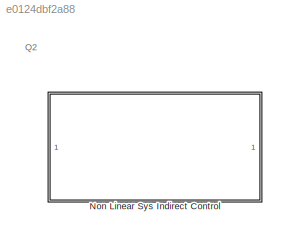
MODEL slx_e0124dbf2a88
KIND model
CONFIG AbsTol = auto
CONFIG EnableMultiTasking = off
CONFIG FixedStep = auto
CONFIG MaxStep = auto
CONFIG MinStep = auto
CONFIG RelTol = 1e-3
CONFIG SampleTimeConstraint = Unconstrained
CONFIG SolverName = VariableStepAuto
CONFIG StartTime = 0.0
CONFIG StopTime = 50
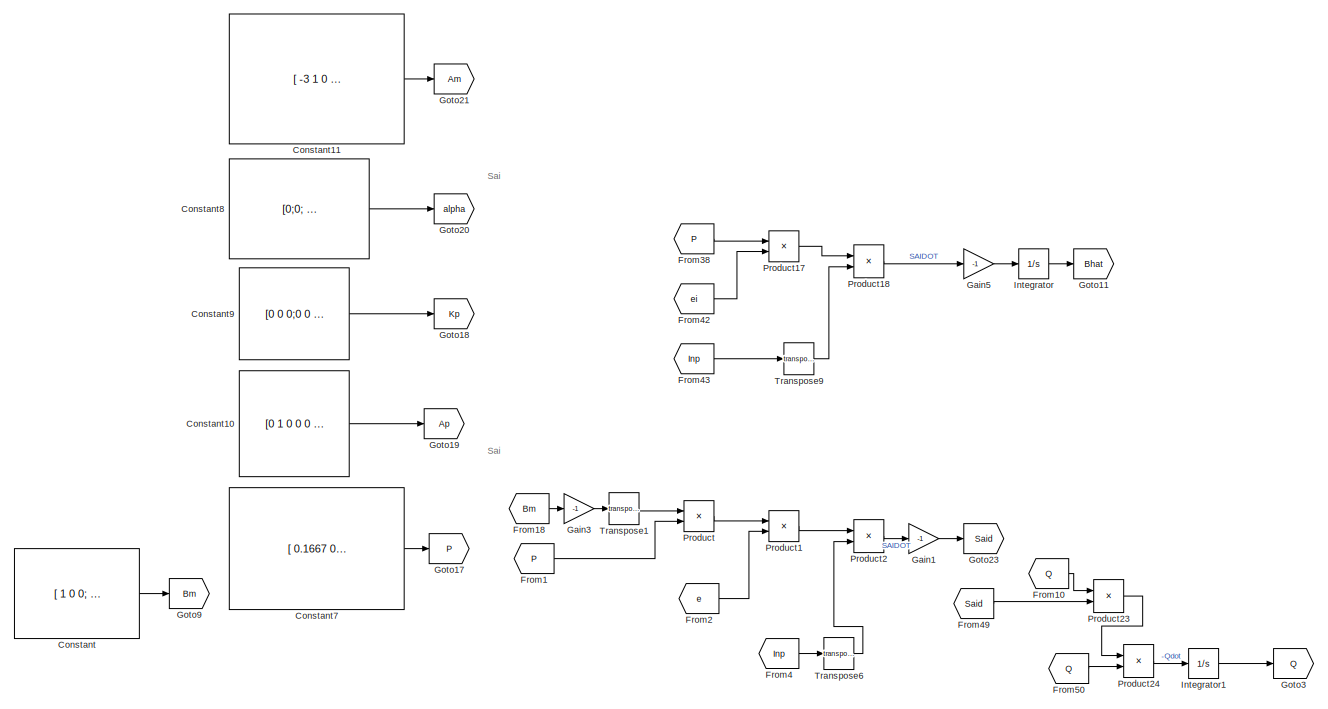
[diagram: Non Linear Sys Indirect Control - part 1/4, top left region]
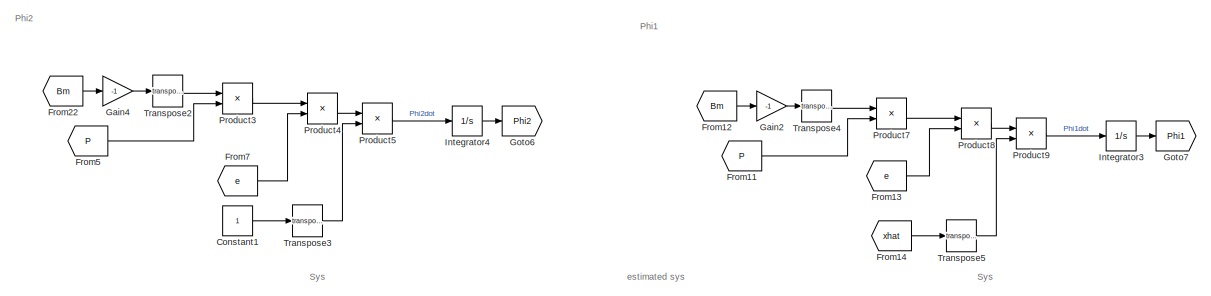
[diagram: Non Linear Sys Indirect Control - part 2/4, middle right region]
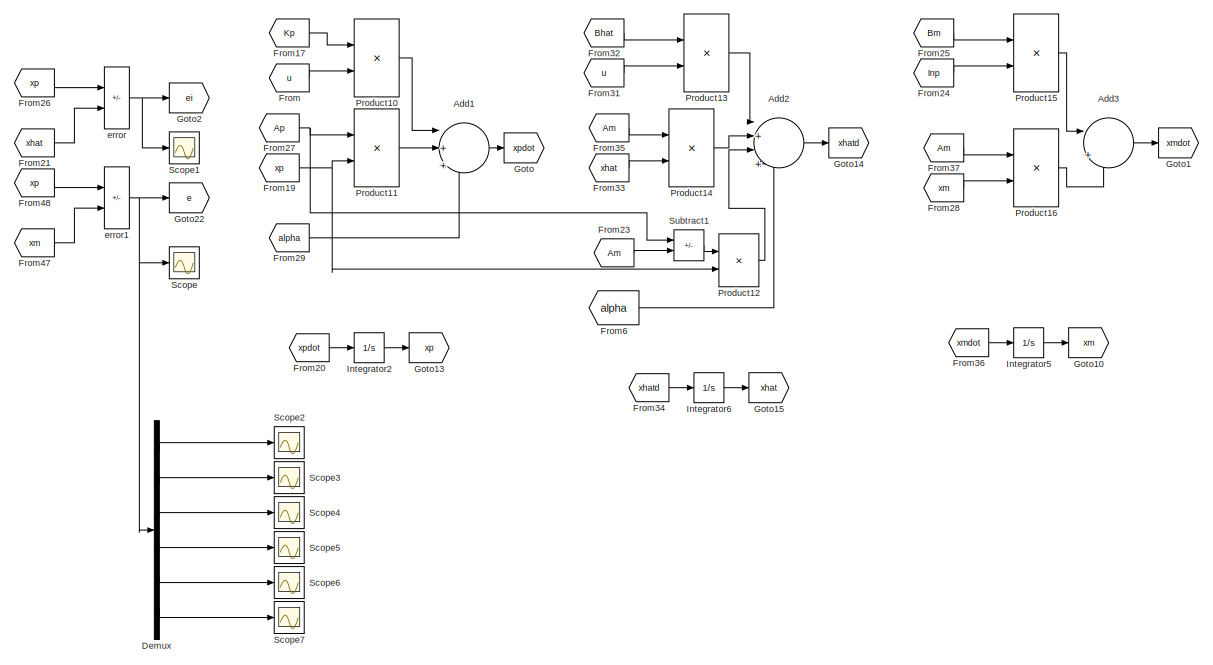
[diagram: Non Linear Sys Indirect Control - part 3/4, bottom right region]
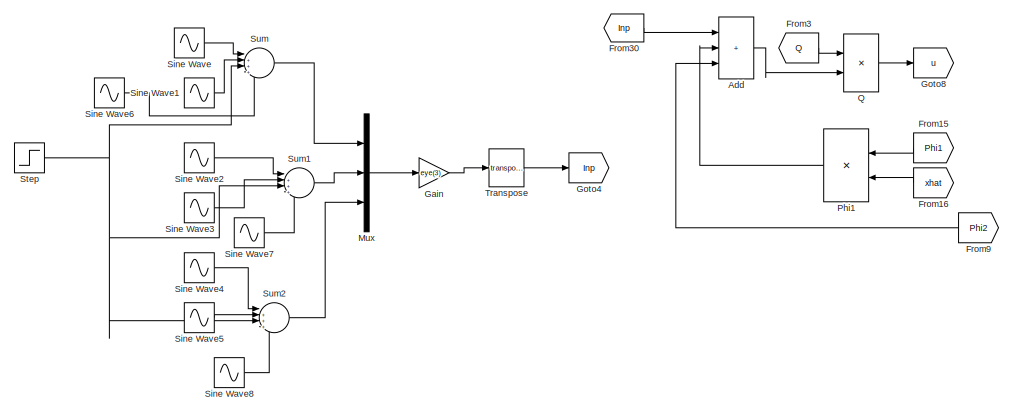
[diagram: Non Linear Sys Indirect Control - part 4/4, bottom center region]
BLOCK [SubSystem] Non Linear Sys Indirect Control
BLOCK [Sum] Non Linear Sys Indirect Control/Add
  IconShape = rectangular
  Inputs = +++
BLOCK [Sum] Non Linear Sys Indirect Control/Add1
  Inputs = |++|+
BLOCK [Sum] Non Linear Sys Indirect Control/Add2
  Inputs = |+|+|+|+
BLOCK [Sum] Non Linear Sys Indirect Control/Add3
  Inputs = |+|+
BLOCK [Constant] Non Linear Sys Indirect Control/Constant
  Value = [ 1 0 0;\n           0 1 0;\n           0 0 1;\n           1 0 0;\n           0 1 0;\n           0 0 1 ];
BLOCK [Constant] Non Linear Sys Indirect Control/Constant1
BLOCK [Constant] Non Linear Sys Indirect Control/Constant10
  Value = [0 1 0 0 0 0;      0 0 0 0 0 0;\n      0 0 0 1 0 0;      0 0 0 0 0 0;\n      0 0 0 0 0 1;      0 0 0 0 0 0]
BLOCK [Constant] Non Linear Sys Indirect Control/Constant11
  Value = [ -3  1  0  0  0  0;\n            0 -2  1  0  0  0;\n            0  0 -1  1  0  0;\n            0  0  0 -1  1  0;\n            0  0  0  0 -1  1;\n            0  0  0  0  0 -1 ]
BLOCK [Constant] Non Linear Sys Indirect Control/Constant7
  Value = [ 0.1667  0.0333  0.0083  0.0021  0.0005  0.0001;\n          0.0333  0.2667  0.0917  0.0312  0.0106  0.0036;\n          0.0083  0.0917  0.5917  0.3115  0.1610  0.0823;\n          0.0021  0.0312  0.3115  0.8115  0.4862  0.2843;\n          0.0005  0.0106  0.1610  0.4862  0.9862  0.6353;\n          0.0001  0.0036  0.0823  0.2843  0.6353  1.1353 ];
BLOCK [Constant] Non Linear Sys Indirect Control/Constant8
  Value = [0;0;      0 ;\n      0 ;  -9.806 ;      0 ];
BLOCK [Constant] Non Linear Sys Indirect Control/Constant9
  Value = [0 0 0;0 0 0;0 0 0 ;1/2.5 0 0  ; 0 1/2.5  0;0 0 1/0.03];
BLOCK [Demux] Non Linear Sys Indirect Control/Demux
  Outputs = 6
BLOCK [From] Non Linear Sys Indirect Control/From
  GotoTag = u
BLOCK [From] Non Linear Sys Indirect Control/From1
  GotoTag = P
BLOCK [From] Non Linear Sys Indirect Control/From10
  GotoTag = Q
BLOCK [From] Non Linear Sys Indirect Control/From11
  GotoTag = P
BLOCK [From] Non Linear Sys Indirect Control/From12
  GotoTag = Bm
BLOCK [From] Non Linear Sys Indirect Control/From13
  GotoTag = e
BLOCK [From] Non Linear Sys Indirect Control/From14
  GotoTag = xhat
BLOCK [From] Non Linear Sys Indirect Control/From15
  GotoTag = Phi1
  NameLocation = top
BLOCK [From] Non Linear Sys Indirect Control/From16
  GotoTag = xhat
  NameLocation = top
BLOCK [From] Non Linear Sys Indirect Control/From17
  GotoTag = Kp
BLOCK [From] Non Linear Sys Indirect Control/From18
  GotoTag = Bm
BLOCK [From] Non Linear Sys Indirect Control/From19
  GotoTag = xp
BLOCK [From] Non Linear Sys Indirect Control/From2
  GotoTag = e
BLOCK [From] Non Linear Sys Indirect Control/From20
  GotoTag = xpdot
BLOCK [From] Non Linear Sys Indirect Control/From21
  GotoTag = xhat
BLOCK [From] Non Linear Sys Indirect Control/From22
  GotoTag = Bm
BLOCK [From] Non Linear Sys Indirect Control/From23
  GotoTag = Am
BLOCK [From] Non Linear Sys Indirect Control/From24
  GotoTag = Inp
BLOCK [From] Non Linear Sys Indirect Control/From25
  GotoTag = Bm
BLOCK [From] Non Linear Sys Indirect Control/From26
  GotoTag = xp
BLOCK [From] Non Linear Sys Indirect Control/From27
  GotoTag = Ap
BLOCK [From] Non Linear Sys Indirect Control/From28
  GotoTag = xm
BLOCK [From] Non Linear Sys Indirect Control/From29
  GotoTag = alpha
BLOCK [From] Non Linear Sys Indirect Control/From3
  GotoTag = Q
BLOCK [From] Non Linear Sys Indirect Control/From30
  GotoTag = Inp
BLOCK [From] Non Linear Sys Indirect Control/From31
  GotoTag = u
BLOCK [From] Non Linear Sys Indirect Control/From32
  GotoTag = Bhat
BLOCK [From] Non Linear Sys Indirect Control/From33
  GotoTag = xhat
BLOCK [From] Non Linear Sys Indirect Control/From34
  GotoTag = xhatd
BLOCK [From] Non Linear Sys Indirect Control/From35
  GotoTag = Am
BLOCK [From] Non Linear Sys Indirect Control/From36
  GotoTag = xmdot
BLOCK [From] Non Linear Sys Indirect Control/From37
  GotoTag = Am
BLOCK [From] Non Linear Sys Indirect Control/From38
  GotoTag = P
BLOCK [From] Non Linear Sys Indirect Control/From4
  GotoTag = Inp
BLOCK [From] Non Linear Sys Indirect Control/From42
  GotoTag = ei
BLOCK [From] Non Linear Sys Indirect Control/From43
  GotoTag = Inp
BLOCK [From] Non Linear Sys Indirect Control/From47
  GotoTag = xm
BLOCK [From] Non Linear Sys Indirect Control/From48
  GotoTag = xp
BLOCK [From] Non Linear Sys Indirect Control/From49
  GotoTag = Said
BLOCK [From] Non Linear Sys Indirect Control/From5
  GotoTag = P
BLOCK [From] Non Linear Sys Indirect Control/From50
  GotoTag = Q
BLOCK [From] Non Linear Sys Indirect Control/From6
  GotoTag = alpha
BLOCK [From] Non Linear Sys Indirect Control/From7
  GotoTag = e
BLOCK [From] Non Linear Sys Indirect Control/From9
  GotoTag = Phi2
  NameLocation = top
BLOCK [Gain] Non Linear Sys Indirect Control/Gain
  Gain = eye(3)
  Multiplication = Matrix(u*K)
BLOCK [Gain] Non Linear Sys Indirect Control/Gain1
  Gain = -1
BLOCK [Gain] Non Linear Sys Indirect Control/Gain2
  Gain = -1
BLOCK [Gain] Non Linear Sys Indirect Control/Gain3
  Gain = -1
BLOCK [Gain] Non Linear Sys Indirect Control/Gain4
  Gain = -1
BLOCK [Gain] Non Linear Sys Indirect Control/Gain5
  Gain = -1
BLOCK [Goto] Non Linear Sys Indirect Control/Goto
  GotoTag = xpdot
BLOCK [Goto] Non Linear Sys Indirect Control/Goto1
  GotoTag = xmdot
BLOCK [Goto] Non Linear Sys Indirect Control/Goto10
  GotoTag = xm
BLOCK [Goto] Non Linear Sys Indirect Control/Goto11
  GotoTag = Bhat
BLOCK [Goto] Non Linear Sys Indirect Control/Goto13
  GotoTag = xp
BLOCK [Goto] Non Linear Sys Indirect Control/Goto14
  GotoTag = xhatd
BLOCK [Goto] Non Linear Sys Indirect Control/Goto15
  GotoTag = xhat
BLOCK [Goto] Non Linear Sys Indirect Control/Goto17
  GotoTag = P
BLOCK [Goto] Non Linear Sys Indirect Control/Goto18
  GotoTag = Kp
BLOCK [Goto] Non Linear Sys Indirect Control/Goto19
  GotoTag = Ap
BLOCK [Goto] Non Linear Sys Indirect Control/Goto2
  GotoTag = ei
BLOCK [Goto] Non Linear Sys Indirect Control/Goto20
  GotoTag = alpha
BLOCK [Goto] Non Linear Sys Indirect Control/Goto21
  GotoTag = Am
BLOCK [Goto] Non Linear Sys Indirect Control/Goto22
  GotoTag = e
BLOCK [Goto] Non Linear Sys Indirect Control/Goto23
  GotoTag = Said
BLOCK [Goto] Non Linear Sys Indirect Control/Goto3
  GotoTag = Q
BLOCK [Goto] Non Linear Sys Indirect Control/Goto4
  GotoTag = Inp
BLOCK [Goto] Non Linear Sys Indirect Control/Goto6
  GotoTag = Phi2
BLOCK [Goto] Non Linear Sys Indirect Control/Goto7
  GotoTag = Phi1
BLOCK [Goto] Non Linear Sys Indirect Control/Goto8
  GotoTag = u
BLOCK [Goto] Non Linear Sys Indirect Control/Goto9
  GotoTag = Bm
BLOCK [Integrator] Non Linear Sys Indirect Control/Integrator
BLOCK [Integrator] Non Linear Sys Indirect Control/Integrator1
  IgnoreLimit = on
  InitialCondition = [0 0 0; 0 0 0; 0 0 0]
BLOCK [Integrator] Non Linear Sys Indirect Control/Integrator2
  InitialCondition = [0 ;0; 0;0;0;0]
BLOCK [Integrator] Non Linear Sys Indirect Control/Integrator3
BLOCK [Integrator] Non Linear Sys Indirect Control/Integrator4
BLOCK [Integrator] Non Linear Sys Indirect Control/Integrator5
BLOCK [Integrator] Non Linear Sys Indirect Control/Integrator6
  InitialCondition = [0; 0; 0;0;0;0]
BLOCK [Mux] Non Linear Sys Indirect Control/Mux
  DisplayOption = bar
  Inputs = 3
BLOCK [Product] Non Linear Sys Indirect Control/Phi1
  Multiplication = Matrix(*)
  NameLocation = top
BLOCK [Product] Non Linear Sys Indirect Control/Product
  Multiplication = Matrix(*)
BLOCK [Product] Non Linear Sys Indirect Control/Product1
  Multiplication = Matrix(*)
BLOCK [Product] Non Linear Sys Indirect Control/Product10
  Multiplication = Matrix(*)
BLOCK [Product] Non Linear Sys Indirect Control/Product11
  Multiplication = Matrix(*)
BLOCK [Product] Non Linear Sys Indirect Control/Product12
  Multiplication = Matrix(*)
BLOCK [Product] Non Linear Sys Indirect Control/Product13
  Multiplication = Matrix(*)
BLOCK [Product] Non Linear Sys Indirect Control/Product14
  Multiplication = Matrix(*)
BLOCK [Product] Non Linear Sys Indirect Control/Product15
  Multiplication = Matrix(*)
BLOCK [Product] Non Linear Sys Indirect Control/Product16
  Multiplication = Matrix(*)
BLOCK [Product] Non Linear Sys Indirect Control/Product17
  Multiplication = Matrix(*)
BLOCK [Product] Non Linear Sys Indirect Control/Product18
  Multiplication = Matrix(*)
BLOCK [Product] Non Linear Sys Indirect Control/Product2
  Multiplication = Matrix(*)
BLOCK [Product] Non Linear Sys Indirect Control/Product23
  Multiplication = Matrix(*)
BLOCK [Product] Non Linear Sys Indirect Control/Product24
  Multiplication = Matrix(*)
BLOCK [Product] Non Linear Sys Indirect Control/Product3
  Multiplication = Matrix(*)
BLOCK [Product] Non Linear Sys Indirect Control/Product4
  Multiplication = Matrix(*)
BLOCK [Product] Non Linear Sys Indirect Control/Product5
  Multiplication = Matrix(*)
BLOCK [Product] Non Linear Sys Indirect Control/Product7
  Multiplication = Matrix(*)
BLOCK [Product] Non Linear Sys Indirect Control/Product8
  Multiplication = Matrix(*)
BLOCK [Product] Non Linear Sys Indirect Control/Product9
  Multiplication = Matrix(*)
BLOCK [Product] Non Linear Sys Indirect Control/Q
  Multiplication = Matrix(*)
BLOCK [Scope] Non Linear Sys Indirect Control/Scope
  Floating = off
  NumInputPorts = 1
  ScopeSpecificationString = Simulink.scopes.TimeScopeBlockCfg('CurrentConfiguration', extmgr.ConfigurationSet(extmgr.Configuration('Core','General UI',true),extmgr.Configuration('Core','Source UI',true),extmgr.Configuration('Sources','WiredSimulink',true,'DataLoggingVariableName','ScopeData1'),extmgr.Configuration('Visuals','Time Domain',true,'SerializedDisplays',{struct('MinYLimReal','-556.65487','MaxYLimReal','61.85054','Y...<+1588ch>
BLOCK [Scope] Non Linear Sys Indirect Control/Scope1
  Floating = off
  NumInputPorts = 1
  ScopeSpecificationString = Simulink.scopes.TimeScopeBlockCfg('CurrentConfiguration', extmgr.ConfigurationSet(extmgr.Configuration('Core','General UI',true),extmgr.Configuration('Core','Source UI',true),extmgr.Configuration('Sources','WiredSimulink',true),extmgr.Configuration('Visuals','Time Domain',true,'SerializedDisplays',{struct('MinYLimReal','-1.00000','MaxYLimReal','1.00000','YLabelReal','','MinYLimMag','0.00000','MaxY...<+1377ch>
BLOCK [Scope] Non Linear Sys Indirect Control/Scope2
  Floating = off
  NumInputPorts = 1
  ScopeSpecificationString = Simulink.scopes.TimeScopeBlockCfg('CurrentConfiguration', extmgr.ConfigurationSet(extmgr.Configuration('Core','General UI',true),extmgr.Configuration('Core','Source UI',true),extmgr.Configuration('Sources','WiredSimulink',true,'DataLoggingVariableName','ScopeData2'),extmgr.Configuration('Visuals','Time Domain',true,'SerializedDisplays',{struct('MinYLimReal','-5.29694','MaxYLimReal','0.58855','YLab...<+1366ch>
BLOCK [Scope] Non Linear Sys Indirect Control/Scope3
  Floating = off
  NumInputPorts = 1
  ScopeSpecificationString = Simulink.scopes.TimeScopeBlockCfg('CurrentConfiguration', extmgr.ConfigurationSet(extmgr.Configuration('Core','General UI',true),extmgr.Configuration('Core','Source UI',true),extmgr.Configuration('Sources','WiredSimulink',true,'DataLoggingVariableName','ScopeData3'),extmgr.Configuration('Visuals','Time Domain',true,'SerializedDisplays',{struct('MinYLimReal','-10.6352','MaxYLimReal','1.18169','YLab...<+1366ch>
BLOCK [Scope] Non Linear Sys Indirect Control/Scope4
  Floating = off
  NumInputPorts = 1
  ScopeSpecificationString = Simulink.scopes.TimeScopeBlockCfg('CurrentConfiguration', extmgr.ConfigurationSet(extmgr.Configuration('Core','General UI',true),extmgr.Configuration('Core','Source UI',true),extmgr.Configuration('Sources','WiredSimulink',true,'DataLoggingVariableName','ScopeData4'),extmgr.Configuration('Visuals','Time Domain',true,'SerializedDisplays',{struct('MinYLimReal','-17.09317','MaxYLimReal','1.89924','YLa...<+1370ch>
BLOCK [Scope] Non Linear Sys Indirect Control/Scope5
  Floating = off
  NumInputPorts = 1
  ScopeSpecificationString = Simulink.scopes.TimeScopeBlockCfg('CurrentConfiguration', extmgr.ConfigurationSet(extmgr.Configuration('Core','General UI',true),extmgr.Configuration('Core','Source UI',true),extmgr.Configuration('Sources','WiredSimulink',true,'DataLoggingVariableName','ScopeData5'),extmgr.Configuration('Visuals','Time Domain',true,'SerializedDisplays',{struct('MinYLimReal','-13.52507','MaxYLimReal','1.50279','YLa...<+1370ch>
BLOCK [Scope] Non Linear Sys Indirect Control/Scope6
  Floating = off
  NumInputPorts = 1
  ScopeSpecificationString = Simulink.scopes.TimeScopeBlockCfg('CurrentConfiguration', extmgr.ConfigurationSet(extmgr.Configuration('Core','General UI',true),extmgr.Configuration('Core','Source UI',true),extmgr.Configuration('Sources','WiredSimulink',true,'DataLoggingVariableName','ScopeData6'),extmgr.Configuration('Visuals','Time Domain',true,'SerializedDisplays',{struct('MinYLimReal','-556.65487','MaxYLimReal','61.85054','Y...<+1378ch>
BLOCK [Scope] Non Linear Sys Indirect Control/Scope7
  Floating = off
  NumInputPorts = 1
  ScopeSpecificationString = Simulink.scopes.TimeScopeBlockCfg('CurrentConfiguration', extmgr.ConfigurationSet(extmgr.Configuration('Core','General UI',true),extmgr.Configuration('Core','Source UI',true),extmgr.Configuration('Sources','WiredSimulink',true,'DataLoggingVariableName','ScopeData7'),extmgr.Configuration('Visuals','Time Domain',true,'SerializedDisplays',{struct('MinYLimReal','-6.36948','MaxYLimReal','0.70772','YLab...<+1366ch>
BLOCK [Sin] Non Linear Sys Indirect Control/Sine Wave
  SampleTime = 0
BLOCK [Sin] Non Linear Sys Indirect Control/Sine Wave1
  Amplitude = 3
  Frequency = 1.5
  SampleTime = 0
BLOCK [Sin] Non Linear Sys Indirect Control/Sine Wave2
  Amplitude = 2
  Frequency = 2
  SampleTime = 0
BLOCK [Sin] Non Linear Sys Indirect Control/Sine Wave3
  Amplitude = 3
  Frequency = 2.5
  SampleTime = 0
BLOCK [Sin] Non Linear Sys Indirect Control/Sine Wave4
  Amplitude = 3
  Frequency = 3
  SampleTime = 0
BLOCK [Sin] Non Linear Sys Indirect Control/Sine Wave5
  Amplitude = 4
  Frequency = 3.5
  SampleTime = 0
BLOCK [Sin] Non Linear Sys Indirect Control/Sine Wave6
  Amplitude = 2
  Frequency = 4
  SampleTime = 0
BLOCK [Sin] Non Linear Sys Indirect Control/Sine Wave7
  Amplitude = 3
  Frequency = 9
  SampleTime = 0
BLOCK [Sin] Non Linear Sys Indirect Control/Sine Wave8
  Amplitude = 3
  Frequency = 4
  SampleTime = 0
BLOCK [Step] Non Linear Sys Indirect Control/Step
  After = 3
  Before = 2
  SampleTime = 0
BLOCK [Sum] Non Linear Sys Indirect Control/Subtract1
  IconShape = rectangular
  Inputs = +-
BLOCK [Sum] Non Linear Sys Indirect Control/Sum
  Inputs = |++++
BLOCK [Sum] Non Linear Sys Indirect Control/Sum1
  Inputs = |++++
BLOCK [Sum] Non Linear Sys Indirect Control/Sum2
  Inputs = |++++
BLOCK [Math] Non Linear Sys Indirect Control/Transpose
  Operator = transpose
BLOCK [Math] Non Linear Sys Indirect Control/Transpose1
  Operator = transpose
BLOCK [Math] Non Linear Sys Indirect Control/Transpose2
  Operator = transpose
BLOCK [Math] Non Linear Sys Indirect Control/Transpose3
  Operator = transpose
BLOCK [Math] Non Linear Sys Indirect Control/Transpose4
  Operator = transpose
BLOCK [Math] Non Linear Sys Indirect Control/Transpose5
  Operator = transpose
BLOCK [Math] Non Linear Sys Indirect Control/Transpose6
  Operator = transpose
BLOCK [Math] Non Linear Sys Indirect Control/Transpose9
  Operator = transpose
BLOCK [Sum] Non Linear Sys Indirect Control/error
  IconShape = rectangular
  Inputs = -+
BLOCK [Sum] Non Linear Sys Indirect Control/error1
  IconShape = rectangular
  Inputs = +-
ANNOTATION (root): Q2
ANNOTATION Non Linear Sys Indirect Control: Phi1
ANNOTATION Non Linear Sys Indirect Control: Phi2
ANNOTATION Non Linear Sys Indirect Control: Sai
ANNOTATION Non Linear Sys Indirect Control: Sys
ANNOTATION Non Linear Sys Indirect Control: estimated sys
LINE Non Linear Sys Indirect Control/Add1:1 -> Non Linear Sys Indirect Control/Goto:1
LINE Non Linear Sys Indirect Control/Add2:1 -> Non Linear Sys Indirect Control/Goto14:1
LINE Non Linear Sys Indirect Control/Add3:1 -> Non Linear Sys Indirect Control/Goto1:1
LINE Non Linear Sys Indirect Control/Add:1 -> Non Linear Sys Indirect Control/Q:2
LINE Non Linear Sys Indirect Control/Constant10:1 -> Non Linear Sys Indirect Control/Goto19:1
LINE Non Linear Sys Indirect Control/Constant11:1 -> Non Linear Sys Indirect Control/Goto21:1
LINE Non Linear Sys Indirect Control/Constant1:1 -> Non Linear Sys Indirect Control/Transpose3:1
LINE Non Linear Sys Indirect Control/Constant7:1 -> Non Linear Sys Indirect Control/Goto17:1
LINE Non Linear Sys Indirect Control/Constant8:1 -> Non Linear Sys Indirect Control/Goto20:1
LINE Non Linear Sys Indirect Control/Constant9:1 -> Non Linear Sys Indirect Control/Goto18:1
LINE Non Linear Sys Indirect Control/Constant:1 -> Non Linear Sys Indirect Control/Goto9:1
LINE Non Linear Sys Indirect Control/Demux:1 -> Non Linear Sys Indirect Control/Scope2:1
LINE Non Linear Sys Indirect Control/Demux:2 -> Non Linear Sys Indirect Control/Scope3:1
LINE Non Linear Sys Indirect Control/Demux:3 -> Non Linear Sys Indirect Control/Scope4:1
LINE Non Linear Sys Indirect Control/Demux:4 -> Non Linear Sys Indirect Control/Scope5:1
LINE Non Linear Sys Indirect Control/Demux:5 -> Non Linear Sys Indirect Control/Scope6:1
LINE Non Linear Sys Indirect Control/Demux:6 -> Non Linear Sys Indirect Control/Scope7:1
LINE Non Linear Sys Indirect Control/From10:1 -> Non Linear Sys Indirect Control/Product23:1
LINE Non Linear Sys Indirect Control/From11:1 -> Non Linear Sys Indirect Control/Product7:2
LINE Non Linear Sys Indirect Control/From12:1 -> Non Linear Sys Indirect Control/Gain2:1
LINE Non Linear Sys Indirect Control/From13:1 -> Non Linear Sys Indirect Control/Product8:2
LINE Non Linear Sys Indirect Control/From14:1 -> Non Linear Sys Indirect Control/Transpose5:1
LINE Non Linear Sys Indirect Control/From15:1 -> Non Linear Sys Indirect Control/Phi1:1
LINE Non Linear Sys Indirect Control/From16:1 -> Non Linear Sys Indirect Control/Phi1:2
LINE Non Linear Sys Indirect Control/From17:1 -> Non Linear Sys Indirect Control/Product10:1
LINE Non Linear Sys Indirect Control/From18:1 -> Non Linear Sys Indirect Control/Gain3:1
NET Non Linear Sys Indirect Control/From19:1 -> Non Linear Sys Indirect Control/Product11:2, Non Linear Sys Indirect Control/Product12:2
LINE Non Linear Sys Indirect Control/From1:1 -> Non Linear Sys Indirect Control/Product:2
LINE Non Linear Sys Indirect Control/From20:1 -> Non Linear Sys Indirect Control/Integrator2:1
LINE Non Linear Sys Indirect Control/From21:1 -> Non Linear Sys Indirect Control/error:2
LINE Non Linear Sys Indirect Control/From22:1 -> Non Linear Sys Indirect Control/Gain4:1
LINE Non Linear Sys Indirect Control/From23:1 -> Non Linear Sys Indirect Control/Subtract1:2
LINE Non Linear Sys Indirect Control/From24:1 -> Non Linear Sys Indirect Control/Product15:2
LINE Non Linear Sys Indirect Control/From25:1 -> Non Linear Sys Indirect Control/Product15:1
LINE Non Linear Sys Indirect Control/From26:1 -> Non Linear Sys Indirect Control/error:1
NET Non Linear Sys Indirect Control/From27:1 -> Non Linear Sys Indirect Control/Product11:1, Non Linear Sys Indirect Control/Subtract1:1
LINE Non Linear Sys Indirect Control/From28:1 -> Non Linear Sys Indirect Control/Product16:2
LINE Non Linear Sys Indirect Control/From29:1 -> Non Linear Sys Indirect Control/Add1:3
LINE Non Linear Sys Indirect Control/From2:1 -> Non Linear Sys Indirect Control/Product1:2
LINE Non Linear Sys Indirect Control/From30:1 -> Non Linear Sys Indirect Control/Add:1
LINE Non Linear Sys Indirect Control/From31:1 -> Non Linear Sys Indirect Control/Product13:2
LINE Non Linear Sys Indirect Control/From32:1 -> Non Linear Sys Indirect Control/Product13:1
LINE Non Linear Sys Indirect Control/From33:1 -> Non Linear Sys Indirect Control/Product14:2
LINE Non Linear Sys Indirect Control/From34:1 -> Non Linear Sys Indirect Control/Integrator6:1
LINE Non Linear Sys Indirect Control/From35:1 -> Non Linear Sys Indirect Control/Product14:1
LINE Non Linear Sys Indirect Control/From36:1 -> Non Linear Sys Indirect Control/Integrator5:1
LINE Non Linear Sys Indirect Control/From37:1 -> Non Linear Sys Indirect Control/Product16:1
LINE Non Linear Sys Indirect Control/From38:1 -> Non Linear Sys Indirect Control/Product17:1
LINE Non Linear Sys Indirect Control/From3:1 -> Non Linear Sys Indirect Control/Q:1
LINE Non Linear Sys Indirect Control/From42:1 -> Non Linear Sys Indirect Control/Product17:2
LINE Non Linear Sys Indirect Control/From43:1 -> Non Linear Sys Indirect Control/Transpose9:1
LINE Non Linear Sys Indirect Control/From47:1 -> Non Linear Sys Indirect Control/error1:2
LINE Non Linear Sys Indirect Control/From48:1 -> Non Linear Sys Indirect Control/error1:1
LINE Non Linear Sys Indirect Control/From49:1 -> Non Linear Sys Indirect Control/Product23:2
LINE Non Linear Sys Indirect Control/From4:1 -> Non Linear Sys Indirect Control/Transpose6:1
LINE Non Linear Sys Indirect Control/From50:1 -> Non Linear Sys Indirect Control/Product24:2
LINE Non Linear Sys Indirect Control/From5:1 -> Non Linear Sys Indirect Control/Product3:2
LINE Non Linear Sys Indirect Control/From6:1 -> Non Linear Sys Indirect Control/Add2:4
LINE Non Linear Sys Indirect Control/From7:1 -> Non Linear Sys Indirect Control/Product4:2
LINE Non Linear Sys Indirect Control/From9:1 -> Non Linear Sys Indirect Control/Add:3
LINE Non Linear Sys Indirect Control/From:1 -> Non Linear Sys Indirect Control/Product10:2
LINE Non Linear Sys Indirect Control/Gain1:1 -> Non Linear Sys Indirect Control/Goto23:1
LINE Non Linear Sys Indirect Control/Gain2:1 -> Non Linear Sys Indirect Control/Transpose4:1
LINE Non Linear Sys Indirect Control/Gain3:1 -> Non Linear Sys Indirect Control/Transpose1:1
LINE Non Linear Sys Indirect Control/Gain4:1 -> Non Linear Sys Indirect Control/Transpose2:1
LINE Non Linear Sys Indirect Control/Gain5:1 -> Non Linear Sys Indirect Control/Integrator:1
LINE Non Linear Sys Indirect Control/Gain:1 -> Non Linear Sys Indirect Control/Transpose:1
LINE Non Linear Sys Indirect Control/Integrator1:1 -> Non Linear Sys Indirect Control/Goto3:1
LINE Non Linear Sys Indirect Control/Integrator2:1 -> Non Linear Sys Indirect Control/Goto13:1
LINE Non Linear Sys Indirect Control/Integrator3:1 -> Non Linear Sys Indirect Control/Goto7:1
LINE Non Linear Sys Indirect Control/Integrator4:1 -> Non Linear Sys Indirect Control/Goto6:1
LINE Non Linear Sys Indirect Control/Integrator5:1 -> Non Linear Sys Indirect Control/Goto10:1
LINE Non Linear Sys Indirect Control/Integrator6:1 -> Non Linear Sys Indirect Control/Goto15:1
LINE Non Linear Sys Indirect Control/Integrator:1 -> Non Linear Sys Indirect Control/Goto11:1
LINE Non Linear Sys Indirect Control/Mux:1 -> Non Linear Sys Indirect Control/Gain:1
LINE Non Linear Sys Indirect Control/Phi1:1 -> Non Linear Sys Indirect Control/Add:2
LINE Non Linear Sys Indirect Control/Product10:1 -> Non Linear Sys Indirect Control/Add1:1
LINE Non Linear Sys Indirect Control/Product11:1 -> Non Linear Sys Indirect Control/Add1:2
LINE Non Linear Sys Indirect Control/Product12:1 -> Non Linear Sys Indirect Control/Add2:3
LINE Non Linear Sys Indirect Control/Product13:1 -> Non Linear Sys Indirect Control/Add2:1
LINE Non Linear Sys Indirect Control/Product14:1 -> Non Linear Sys Indirect Control/Add2:2
LINE Non Linear Sys Indirect Control/Product15:1 -> Non Linear Sys Indirect Control/Add3:1
LINE Non Linear Sys Indirect Control/Product16:1 -> Non Linear Sys Indirect Control/Add3:2
LINE Non Linear Sys Indirect Control/Product17:1 -> Non Linear Sys Indirect Control/Product18:1
LINE Non Linear Sys Indirect Control/Product18:1 -> Non Linear Sys Indirect Control/Gain5:1
LINE Non Linear Sys Indirect Control/Product1:1 -> Non Linear Sys Indirect Control/Product2:1
LINE Non Linear Sys Indirect Control/Product23:1 -> Non Linear Sys Indirect Control/Product24:1
LINE Non Linear Sys Indirect Control/Product24:1 -> Non Linear Sys Indirect Control/Integrator1:1
LINE Non Linear Sys Indirect Control/Product2:1 -> Non Linear Sys Indirect Control/Gain1:1
LINE Non Linear Sys Indirect Control/Product3:1 -> Non Linear Sys Indirect Control/Product4:1
LINE Non Linear Sys Indirect Control/Product4:1 -> Non Linear Sys Indirect Control/Product5:1
LINE Non Linear Sys Indirect Control/Product5:1 -> Non Linear Sys Indirect Control/Integrator4:1
LINE Non Linear Sys Indirect Control/Product7:1 -> Non Linear Sys Indirect Control/Product8:1
LINE Non Linear Sys Indirect Control/Product8:1 -> Non Linear Sys Indirect Control/Product9:1
LINE Non Linear Sys Indirect Control/Product9:1 -> Non Linear Sys Indirect Control/Integrator3:1
LINE Non Linear Sys Indirect Control/Product:1 -> Non Linear Sys Indirect Control/Product1:1
LINE Non Linear Sys Indirect Control/Q:1 -> Non Linear Sys Indirect Control/Goto8:1
LINE Non Linear Sys Indirect Control/Sine Wave1:1 -> Non Linear Sys Indirect Control/Sum:2
LINE Non Linear Sys Indirect Control/Sine Wave2:1 -> Non Linear Sys Indirect Control/Sum1:1
LINE Non Linear Sys Indirect Control/Sine Wave3:1 -> Non Linear Sys Indirect Control/Sum1:2
LINE Non Linear Sys Indirect Control/Sine Wave4:1 -> Non Linear Sys Indirect Control/Sum2:1
LINE Non Linear Sys Indirect Control/Sine Wave5:1 -> Non Linear Sys Indirect Control/Sum2:2
LINE Non Linear Sys Indirect Control/Sine Wave6:1 -> Non Linear Sys Indirect Control/Sum:4
LINE Non Linear Sys Indirect Control/Sine Wave7:1 -> Non Linear Sys Indirect Control/Sum1:4
LINE Non Linear Sys Indirect Control/Sine Wave8:1 -> Non Linear Sys Indirect Control/Sum2:4
LINE Non Linear Sys Indirect Control/Sine Wave:1 -> Non Linear Sys Indirect Control/Sum:1
NET Non Linear Sys Indirect Control/Step:1 -> Non Linear Sys Indirect Control/Sum1:3, Non Linear Sys Indirect Control/Sum2:3, Non Linear Sys Indirect Control/Sum:3
LINE Non Linear Sys Indirect Control/Subtract1:1 -> Non Linear Sys Indirect Control/Product12:1
LINE Non Linear Sys Indirect Control/Sum1:1 -> Non Linear Sys Indirect Control/Mux:2
LINE Non Linear Sys Indirect Control/Sum2:1 -> Non Linear Sys Indirect Control/Mux:3
LINE Non Linear Sys Indirect Control/Sum:1 -> Non Linear Sys Indirect Control/Mux:1
LINE Non Linear Sys Indirect Control/Transpose1:1 -> Non Linear Sys Indirect Control/Product:1
LINE Non Linear Sys Indirect Control/Transpose2:1 -> Non Linear Sys Indirect Control/Product3:1
LINE Non Linear Sys Indirect Control/Transpose3:1 -> Non Linear Sys Indirect Control/Product5:2
LINE Non Linear Sys Indirect Control/Transpose4:1 -> Non Linear Sys Indirect Control/Product7:1
LINE Non Linear Sys Indirect Control/Transpose5:1 -> Non Linear Sys Indirect Control/Product9:2
LINE Non Linear Sys Indirect Control/Transpose6:1 -> Non Linear Sys Indirect Control/Product2:2
LINE Non Linear Sys Indirect Control/Transpose9:1 -> Non Linear Sys Indirect Control/Product18:2
LINE Non Linear Sys Indirect Control/Transpose:1 -> Non Linear Sys Indirect Control/Goto4:1
NET Non Linear Sys Indirect Control/error1:1 -> Non Linear Sys Indirect Control/Demux:1, Non Linear Sys Indirect Control/Goto22:1, Non Linear Sys Indirect Control/Scope:1
NET Non Linear Sys Indirect Control/error:1 -> Non Linear Sys Indirect Control/Goto2:1, Non Linear Sys Indirect Control/Scope1:1
note: NET lines group one-source signal fan-out (src -> all destinations, sorted); 1:1 wires keep LINE
